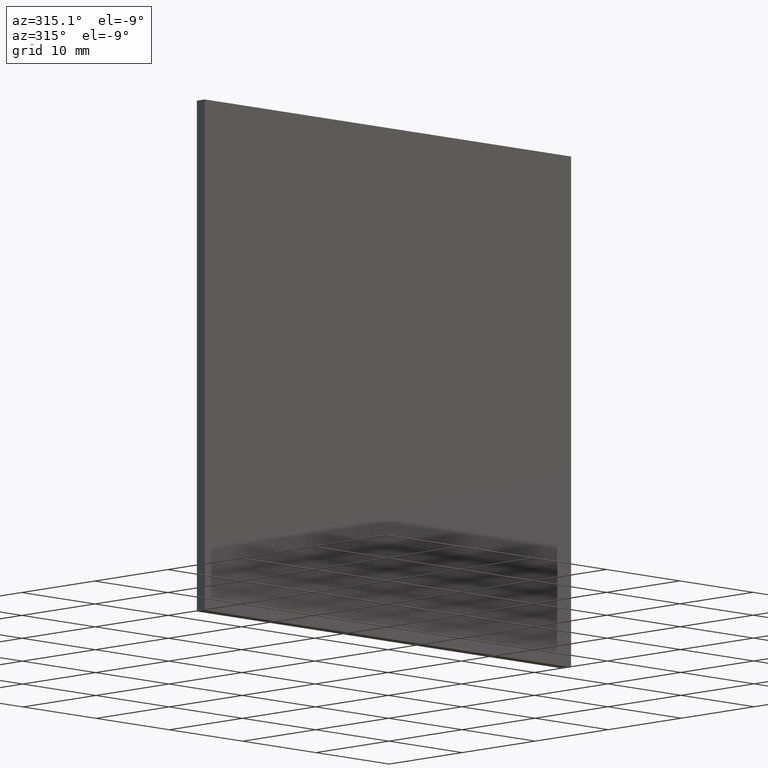
[diagram: clean part render]
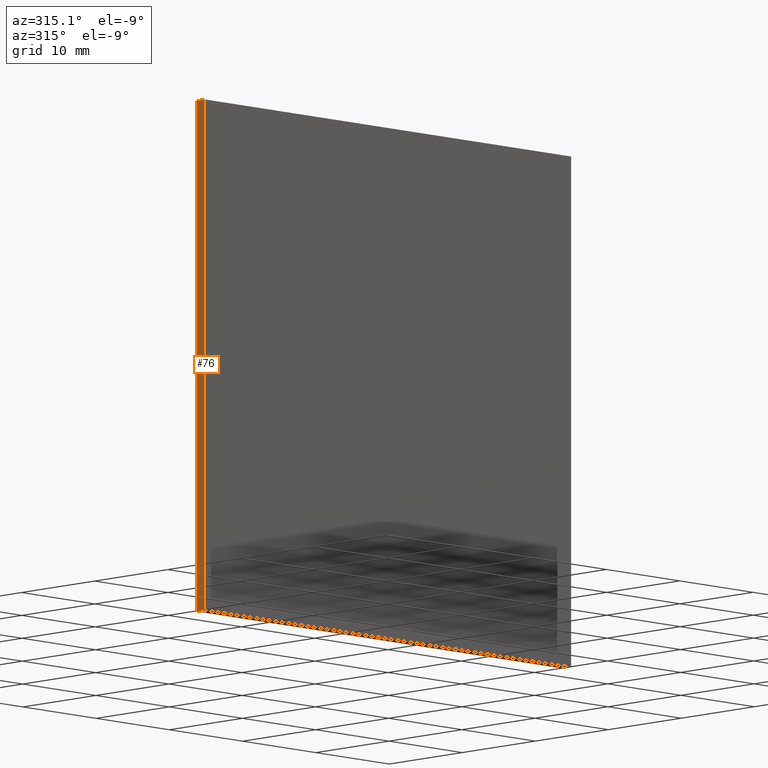
[diagram: same view with one face highlighted and labeled with its STEP entity id]
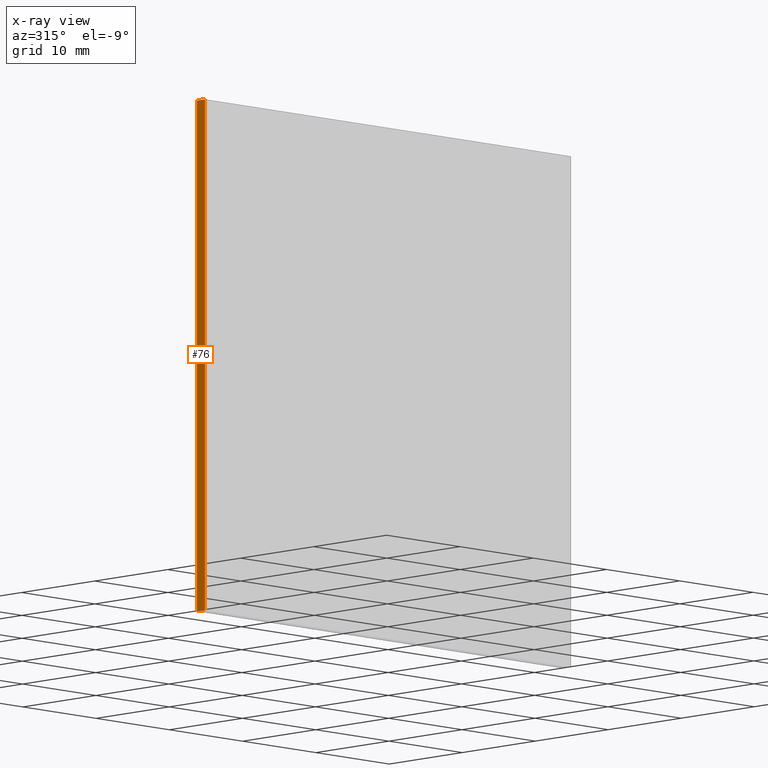
[diagram: x-ray of the same camera — body ghosted, the highlighted face saturated]
A machine part, auxiliary view. The second image highlights one B-rep face of the part: STEP entity #76.
The next image is the same camera in x-ray: the body ghosted, the highlighted face saturated — about 0% of this face is hidden behind the body in this view.
In plain terms, the highlighted planar face has unit normal (1, 0, -0).
Its self-contained STEP definition (entity closure, byte-faithful):
#3 = VERTEX_POINT ( 'NONE', #71 ) ;
#5 = DIRECTION ( 'NONE',  ( 1.387778780781445700E-016, 0.0000000000000000000, 1.000000000000000000 ) ) ;
#13 = AXIS2_PLACEMENT_3D ( 'NONE', #117, #20, #129 ) ;
#20 = DIRECTION ( 'NONE',  ( 1.000000000000000000, 0.0000000000000000000, -1.387778780781445700E-016 ) ) ;
#30 = EDGE_CURVE ( 'NONE', #102, #108, #70, .T. ) ;
#31 = FACE_OUTER_BOUND ( 'NONE', #155, .T. ) ;
#36 = CARTESIAN_POINT ( 'NONE',  ( -25.00000000000000400, 1.100000000000000100, -25.00000000000000000 ) ) ;
#39 = CARTESIAN_POINT ( 'NONE',  ( -25.00000000000000400, 0.0000000000000000000, -25.00000000000000000 ) ) ;
#52 = CARTESIAN_POINT ( 'NONE',  ( -25.00000000000000400, 1.100000000000000100, -25.00000000000000000 ) ) ;
#53 = LINE ( 'NONE', #52, #111 ) ;
#70 = LINE ( 'NONE', #157, #125 ) ;
#71 = CARTESIAN_POINT ( 'NONE',  ( -25.00000000000000400, 0.0000000000000000000, -25.00000000000000000 ) ) ;
#73 = CARTESIAN_POINT ( 'NONE',  ( -24.99999999999999600, 1.100000000000000100, 25.00000000000000000 ) ) ;
#75 = ORIENTED_EDGE ( 'NONE', *, *, #164, .T. ) ;
#76 = ADVANCED_FACE ( 'NONE', ( #31 ), #159, .F. ) ;
#79 = ORIENTED_EDGE ( 'NONE', *, *, #149, .F. ) ;
#81 = VECTOR ( 'NONE', #130, 1000.000000000000000 ) ;
#85 = VERTEX_POINT ( 'NONE', #99 ) ;
#91 = LINE ( 'NONE', #39, #175 ) ;
#99 = CARTESIAN_POINT ( 'NONE',  ( -24.99999999999999600, 0.0000000000000000000, 25.00000000000000000 ) ) ;
#100 = LINE ( 'NONE', #145, #81 ) ;
#102 = VERTEX_POINT ( 'NONE', #36 ) ;
#105 = EDGE_CURVE ( 'NONE', #102, #3, #53, .T. ) ;
#108 = VERTEX_POINT ( 'NONE', #73 ) ;
#111 = VECTOR ( 'NONE', #180, 1000.000000000000000 ) ;
#117 = CARTESIAN_POINT ( 'NONE',  ( -25.00000000000000400, 1.100000000000000100, -25.00000000000000000 ) ) ;
#125 = VECTOR ( 'NONE', #177, 1000.000000000000000 ) ;
#129 = DIRECTION ( 'NONE',  ( -1.387778780781445700E-016, 0.0000000000000000000, -1.000000000000000000 ) ) ;
#130 = DIRECTION ( 'NONE',  ( -0.0000000000000000000, -1.000000000000000000, -0.0000000000000000000 ) ) ;
#136 = ORIENTED_EDGE ( 'NONE', *, *, #30, .F. ) ;
#142 = ORIENTED_EDGE ( 'NONE', *, *, #105, .T. ) ;
#145 = CARTESIAN_POINT ( 'NONE',  ( -24.99999999999999600, 1.100000000000000100, 25.00000000000000000 ) ) ;
#149 = EDGE_CURVE ( 'NONE', #108, #85, #100, .T. ) ;
#155 = EDGE_LOOP ( 'NONE', ( #75, #79, #136, #142 ) ) ;
#157 = CARTESIAN_POINT ( 'NONE',  ( -25.00000000000000400, 1.100000000000000100, -25.00000000000000000 ) ) ;
#159 = PLANE ( 'NONE',  #13 ) ;
#164 = EDGE_CURVE ( 'NONE', #3, #85, #91, .T. ) ;
#175 = VECTOR ( 'NONE', #5, 1000.000000000000000 ) ;
#177 = DIRECTION ( 'NONE',  ( 1.387778780781445700E-016, 0.0000000000000000000, 1.000000000000000000 ) ) ;
#180 = DIRECTION ( 'NONE',  ( -0.0000000000000000000, -1.000000000000000000, -0.0000000000000000000 ) ) ;